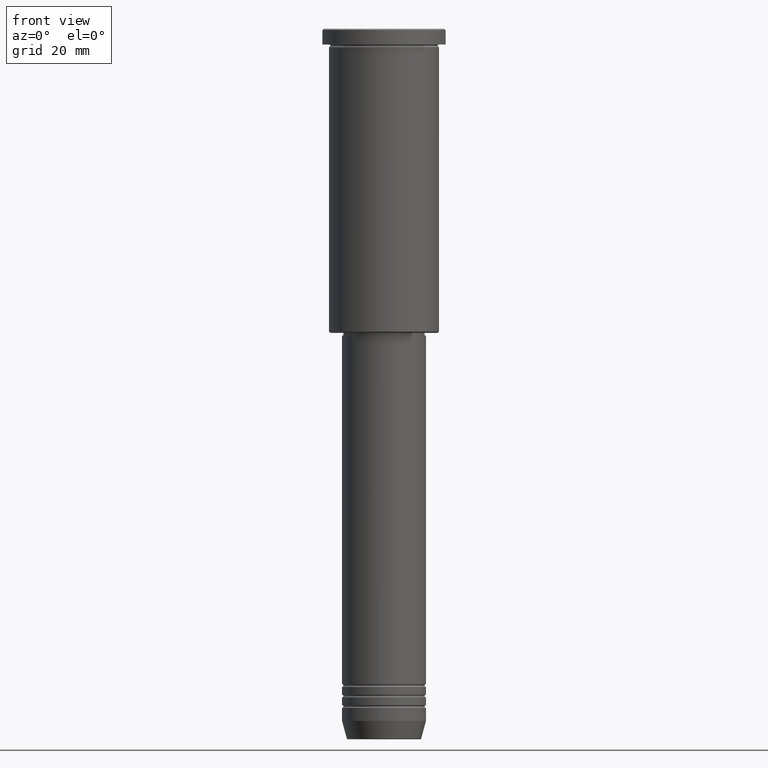
[diagram: clean part render]
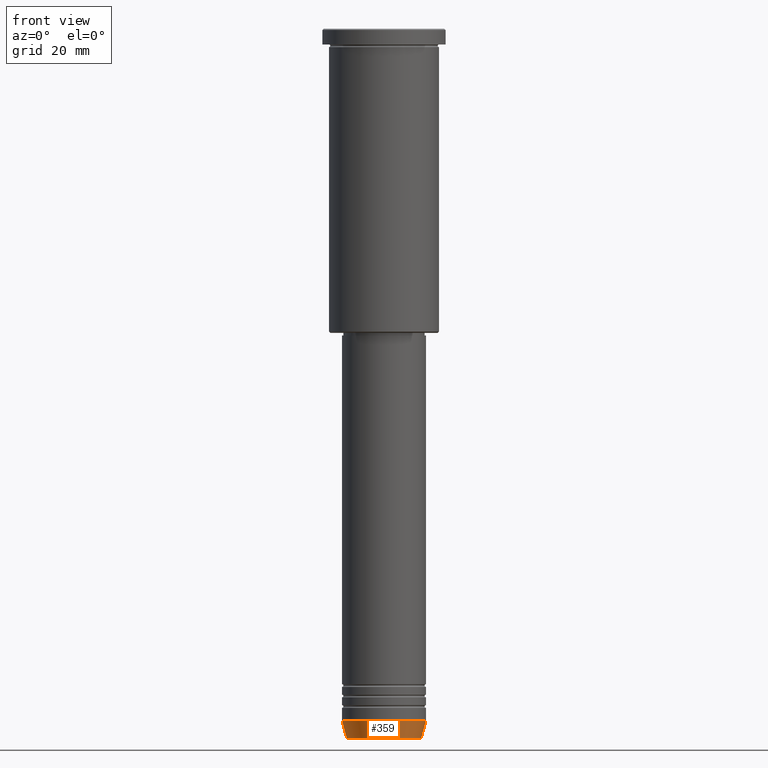
[diagram: same view with one face highlighted and labeled with its STEP entity id]
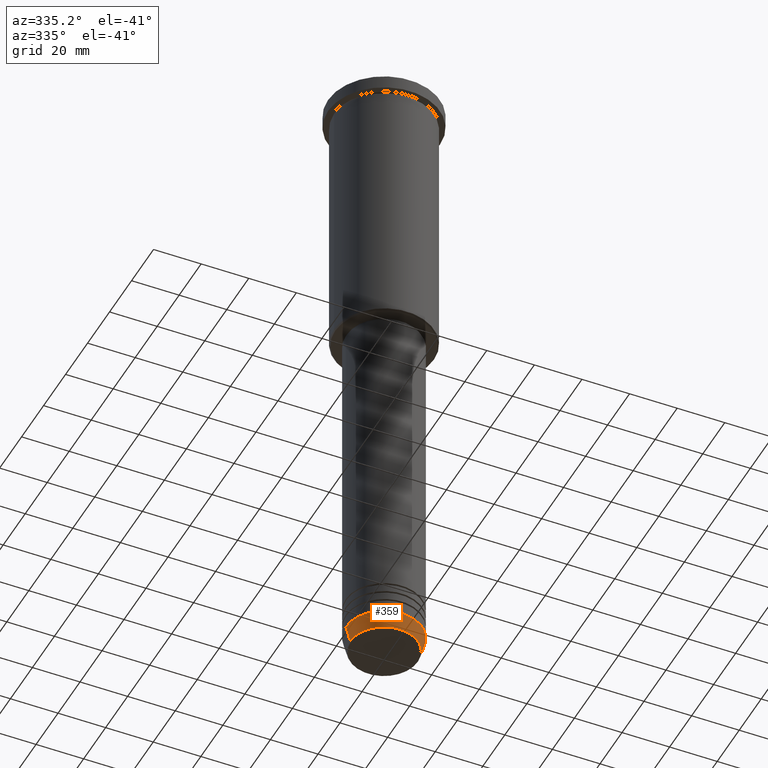
[diagram: same view with one face highlighted and labeled with its STEP entity id]
A machine part, front view. The second image highlights one B-rep face of the part: STEP entity #359.
A second angle (auxiliary view) of the same face is appended — the face is thin or edge-on in the first view.
In plain terms, the highlighted conical surface has half-angle 15 deg.
Its self-contained STEP definition (entity closure, byte-faithful):
#37 = CARTESIAN_POINT ( 'NONE',  ( 16.00000000000000000, 0.000000000000000000, -264.0000000000000000 ) ) ;
#63 = ORIENTED_EDGE ( 'NONE', *, *, #1135, .T. ) ;
#88 = AXIS2_PLACEMENT_3D ( 'NONE', #1045, #510, #1150 ) ;
#161 = EDGE_CURVE ( 'NONE', #591, #166, #897, .T. ) ;
#166 = VERTEX_POINT ( 'NONE', #427 ) ;
#186 = AXIS2_PLACEMENT_3D ( 'NONE', #507, #254, #1174 ) ;
#216 = ORIENTED_EDGE ( 'NONE', *, *, #1173, .T. ) ;
#240 = ORIENTED_EDGE ( 'NONE', *, *, #161, .F. ) ;
#254 = DIRECTION ( 'NONE',  ( -0.000000000000000000, -0.000000000000000000, 1.000000000000000000 ) ) ;
#316 = FACE_OUTER_BOUND ( 'NONE', #630, .T. ) ;
#341 = CARTESIAN_POINT ( 'NONE',  ( 0.000000000000000000, 0.000000000000000000, -264.0000000000000000 ) ) ;
#354 = CARTESIAN_POINT ( 'NONE',  ( 14.22365507213718772, 0.000000000000000000, -270.6294095225512706 ) ) ;
#359 = ADVANCED_FACE ( 'NONE', ( #316 ), #821, .T. ) ;
#407 = DIRECTION ( 'NONE',  ( -0.2588190451025213501, 3.169619151431772337E-17, 0.9659258262890680902 ) ) ;
#427 = CARTESIAN_POINT ( 'NONE',  ( 16.00000000000000000, 0.000000000000000000, -264.0000000000000000 ) ) ;
#507 = CARTESIAN_POINT ( 'NONE',  ( 0.000000000000000000, 0.000000000000000000, -270.6294095225512706 ) ) ;
#510 = DIRECTION ( 'NONE',  ( -0.000000000000000000, -0.000000000000000000, 1.000000000000000000 ) ) ;
#518 = EDGE_CURVE ( 'NONE', #710, #591, #686, .T. ) ;
#549 = CARTESIAN_POINT ( 'NONE',  ( -14.22365507213718772, 1.850665122131323337E-15, -270.6294095225512706 ) ) ;
#591 = VERTEX_POINT ( 'NONE', #842 ) ;
#612 = VERTEX_POINT ( 'NONE', #354 ) ;
#630 = EDGE_LOOP ( 'NONE', ( #1083, #216, #63, #240 ) ) ;
#666 = DIRECTION ( 'NONE',  ( 0.2588190451025213501, 0.000000000000000000, 0.9659258262890680902 ) ) ;
#686 = LINE ( 'NONE', #875, #724 ) ;
#692 = DIRECTION ( 'NONE',  ( -0.000000000000000000, -0.000000000000000000, 1.000000000000000000 ) ) ;
#698 = DIRECTION ( 'NONE',  ( 1.000000000000000000, 0.000000000000000000, 0.000000000000000000 ) ) ;
#706 = VECTOR ( 'NONE', #666, 1000.000000000000000 ) ;
#710 = VERTEX_POINT ( 'NONE', #549 ) ;
#724 = VECTOR ( 'NONE', #407, 1000.000000000000000 ) ;
#821 = CONICAL_SURFACE ( 'NONE', #88, 16.00000000000000000, 0.2617993877991500740 ) ;
#842 = CARTESIAN_POINT ( 'NONE',  ( -16.00000000000000000, 1.959434878635765131E-15, -264.0000000000000000 ) ) ;
#875 = CARTESIAN_POINT ( 'NONE',  ( -16.00000000000000000, 1.959434878635765131E-15, -264.0000000000000000 ) ) ;
#897 = CIRCLE ( 'NONE', #1126, 16.00000000000000000 ) ;
#1045 = CARTESIAN_POINT ( 'NONE',  ( 0.000000000000000000, 0.000000000000000000, -264.0000000000000000 ) ) ;
#1061 = LINE ( 'NONE', #37, #706 ) ;
#1083 = ORIENTED_EDGE ( 'NONE', *, *, #518, .F. ) ;
#1108 = CIRCLE ( 'NONE', #186, 14.22365507213718772 ) ;
#1126 = AXIS2_PLACEMENT_3D ( 'NONE', #341, #692, #698 ) ;
#1135 = EDGE_CURVE ( 'NONE', #612, #166, #1061, .T. ) ;
#1150 = DIRECTION ( 'NONE',  ( 1.000000000000000000, 0.000000000000000000, 0.000000000000000000 ) ) ;
#1173 = EDGE_CURVE ( 'NONE', #710, #612, #1108, .T. ) ;
#1174 = DIRECTION ( 'NONE',  ( 1.000000000000000000, 0.000000000000000000, 0.000000000000000000 ) ) ;